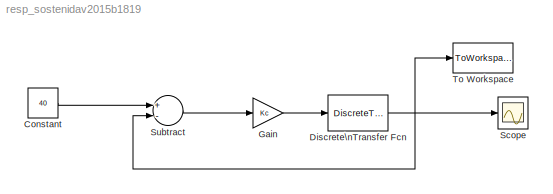
MODEL resp_sostenidav2015b1819
KIND model
BLOCK [Constant] Constant
  SID = 1
  Value = 40
BLOCK [DiscreteTransferFcn] Discrete\nTransfer Fcn
  Denominator = de_pos_disc
  InputPortMap = u0
  Numerator = nu_pos_disc
  Ports = [1, 1]
  SID = 4
  SampleTime = 0.02
BLOCK [Gain] Gain
  Gain = Kc
  Multiplication = Matrix(K*u)
  OutDataTypeStr = Inherit: Inherit via internal rule
  ParamDataTypeStr = Inherit: Inherit via internal rule
  SID = 3
  SaturateOnIntegerOverflow = off
BLOCK [Scope] Scope
  NumInputPorts = 1
  Ports = [1]
  SID = 5
  ScopeSpecificationString = Simulink.scopes.TimeScopeBlockCfg('CurrentConfiguration', extmgr.ConfigurationSet(extmgr.Configuration('Core','General UI',true),extmgr.Configuration('Core','Source UI',true),extmgr.Configuration('Sources','WiredSimulink',true,'DataLoggingLimitDataPoints',true,'DataLoggingSaveFormat','Array','DataLoggingDecimation','1','DataLoggingDecimateData',true,'SampleTime','0.02'),extmgr.Configuration('Visua...<+1524ch>
BLOCK [Sum] Subtract
  InputSameDT = off
  Inputs = +-
  OutDataTypeStr = Inherit: Inherit via internal rule
  Ports = [2, 1]
  SID = 2
  SaturateOnIntegerOverflow = off
BLOCK [ToWorkspace] To Workspace
  FixptAsFi = on
  MaxDataPoints = inf
  Ports = [1]
  SID = 6
  SampleTime = -1
  Save2DSignal = 3-D array (concatenate along third dimension)
  VariableName = pos_bc
LINE Constant:1 -> Subtract:1
NET Discrete\nTransfer Fcn:1 -> Scope:1, Subtract:2, To Workspace:1
LINE Gain:1 -> Discrete\nTransfer Fcn:1
LINE Subtract:1 -> Gain:1
note: NET lines group one-source signal fan-out (src -> all destinations, sorted); 1:1 wires keep LINE
